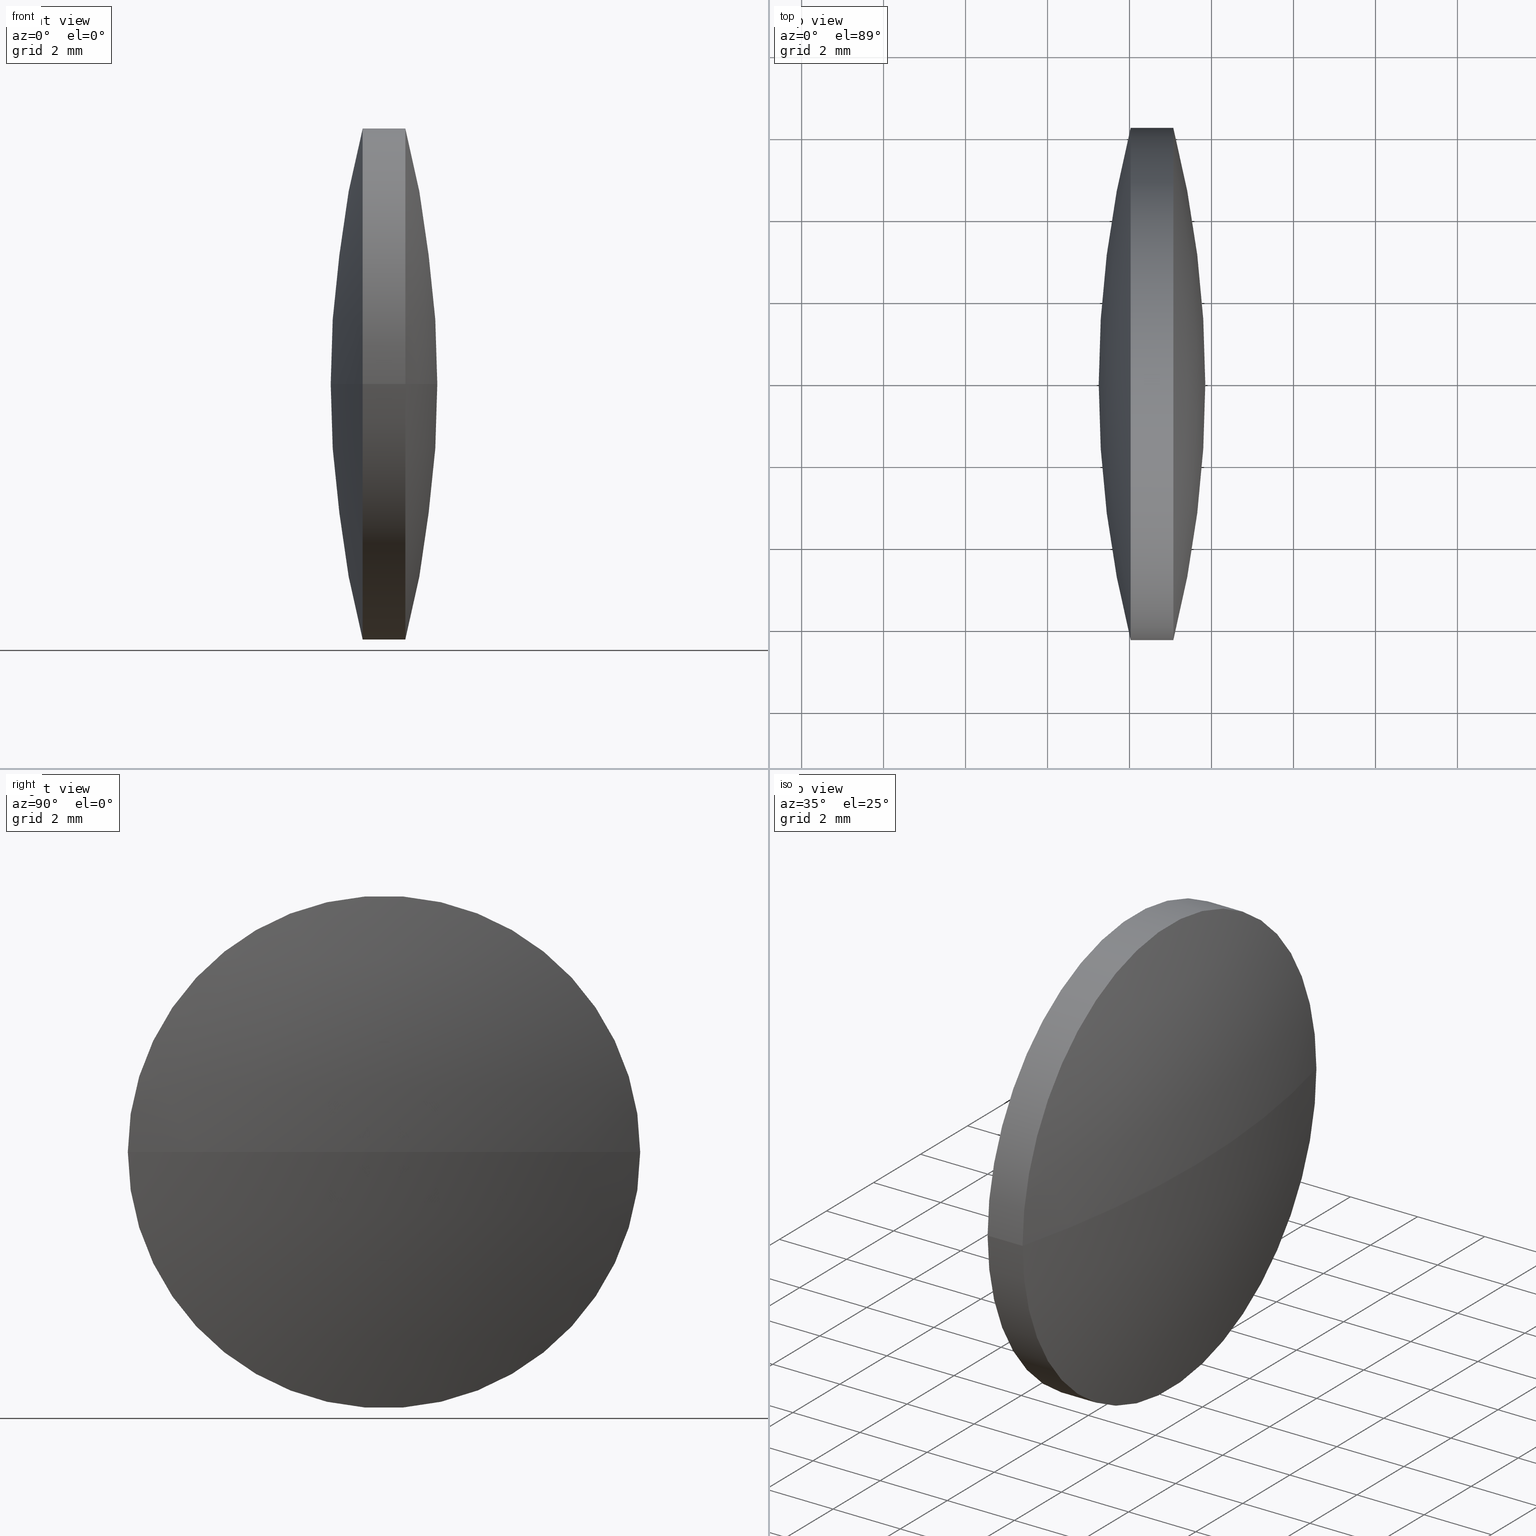
[diagram: canonical four-view strip — front | top / right | iso, engineering-drawing reading convention]
A machine part, canonical four-view strip (front | top / right | iso — engineering-drawing reading convention). The complete STEP part file that produces these views, byte-faithful:
ISO-10303-21;
HEADER;
FILE_DESCRIPTION (( 'STEP AP203' ),
    '1' );
FILE_NAME ('110012.STEP',
    '2019-06-25T01:40:19',
    ( '' ),
    ( '' ),
    'SwSTEP 2.0',
    'SolidWorks 2016',
    '' );
FILE_SCHEMA (( 'CONFIG_CONTROL_DESIGN' ));
ENDSEC;

DATA;
#1 = DIRECTION ( 'NONE',  ( 0.0000000000000000000, -0.0000000000000000000, 1.000000000000000000 ) ) ;
#2 = DIRECTION ( 'NONE',  ( 2.182894663866003600E-015, 1.000000000000000000, 0.0000000000000000000 ) ) ;
#3 = DIRECTION ( 'NONE',  ( 0.0000000000000000000, -0.0000000000000000000, 1.000000000000000000 ) ) ;
#4 = COORDINATED_UNIVERSAL_TIME_OFFSET ( 8, 0, .AHEAD. ) ;
#5 = AXIS2_PLACEMENT_3D ( 'NONE', #32, #196, #224 ) ;
#6 = CARTESIAN_POINT ( 'NONE',  ( 18.41825960543915700, 23.92525247203978000, 0.0000000000000000000 ) ) ;
#7 = EDGE_LOOP ( 'NONE', ( #236, #179, #287 ) ) ;
#8 = CARTESIAN_POINT ( 'NONE',  ( 45.14302203992006200, 23.92525247203976900, 0.0000000000000000000 ) ) ;
#9 = PERSON_AND_ORGANIZATION_ROLE ( 'design_owner' ) ;
#10 = EDGE_CURVE ( 'NONE', #253, #110, #147, .T. ) ;
#11 = DATE_TIME_ROLE ( 'creation_date' ) ;
#12 = ORIENTED_EDGE ( 'NONE', *, *, #111, .T. ) ;
#13 = DATE_AND_TIME ( #207, #85 ) ;
#14 = PERSON_AND_ORGANIZATION_ROLE ( 'creator' ) ;
#15 = LOCAL_TIME ( 9, 40, 19.00000000000000000, #21 ) ;
#16 = EDGE_CURVE ( 'NONE', #110, #198, #109, .T. ) ;
#17 = DATE_AND_TIME ( #203, #23 ) ;
#18 = ORIENTED_EDGE ( 'NONE', *, *, #10, .T. ) ;
#19 = DATE_AND_TIME ( #144, #91 ) ;
#20 = AXIS2_PLACEMENT_3D ( 'NONE', #6, #220, #244 ) ;
#21 = COORDINATED_UNIVERSAL_TIME_OFFSET ( 8, 0, .AHEAD. ) ;
#22 = CC_DESIGN_PERSON_AND_ORGANIZATION_ASSIGNMENT ( #226, #38, ( #30 ) ) ;
#23 = LOCAL_TIME ( 9, 40, 19.00000000000000000, #4 ) ;
#24 = LOCAL_TIME ( 9, 40, 19.00000000000000000, #243 ) ;
#25 = DIRECTION ( 'NONE',  ( 1.000000000000000000, -1.980143587423449700E-015, -0.0000000000000000000 ) ) ;
#26 = APPROVAL ( #131, 'δָ��' ) ;
#27 = SPHERICAL_SURFACE ( 'NONE', #272, 25.43006410256420900 ) ;
#28 = EDGE_CURVE ( 'NONE', #117, #67, #268, .T. ) ;
#29 = DIRECTION ( 'NONE',  ( 0.0000000000000000000, -0.0000000000000000000, 1.000000000000000000 ) ) ;
#30 = PRODUCT_DEFINITION_FORMATION_WITH_SPECIFIED_SOURCE ( '�κ�', '', #174, .NOT_KNOWN. ) ;
#31 = CIRCLE ( 'NONE', #5, 6.249999999999998200 ) ;
#32 = CARTESIAN_POINT ( 'NONE',  ( 42.02832370800324200, 23.92525247203977700, 0.0000000000000000000 ) ) ;
#33 = DIRECTION ( 'NONE',  ( 0.0000000000000000000, 0.0000000000000000000, -1.000000000000000000 ) ) ;
#34 = APPLICATION_PROTOCOL_DEFINITION ( 'international standard', 'config_control_design', 1994, #149 ) ;
#35 = ORIENTED_EDGE ( 'NONE', *, *, #111, .F. ) ;
#36 = PERSON_AND_ORGANIZATION ( #230, #76 ) ;
#37 = APPROVAL_ROLE ( '' ) ;
#38 = PERSON_AND_ORGANIZATION_ROLE ( 'design_supplier' ) ;
#39 = CC_DESIGN_PERSON_AND_ORGANIZATION_ASSIGNMENT ( #240, #99, ( #298 ) ) ;
#40 = CIRCLE ( 'NONE', #115, 25.43006410256420900 ) ;
#41 = LOCAL_TIME ( 9, 40, 19.00000000000000000, #159 ) ;
#42 = APPROVAL_PERSON_ORGANIZATION ( #133, #63, #296 ) ;
#43 = AXIS2_PLACEMENT_3D ( 'NONE', #166, #121, #96 ) ;
#44 = CIRCLE ( 'NONE', #214, 6.249999999999998200 ) ;
#45 = PRODUCT_DEFINITION ( 'δ֪', '', #30, #262 ) ;
#46 = CARTESIAN_POINT ( 'NONE',  ( 42.02832370800324200, 23.92525247203977700, 0.0000000000000000000 ) ) ;
#47 = EDGE_CURVE ( 'NONE', #160, #117, #50, .T. ) ;
#48 = ORIENTED_EDGE ( 'NONE', *, *, #10, .F. ) ;
#49 = DIRECTION ( 'NONE',  ( 2.182894663866003600E-015, 1.000000000000000000, 0.0000000000000000000 ) ) ;
#50 = CIRCLE ( 'NONE', #43, 25.43006410256420900 ) ;
#51 = DIRECTION ( 'NONE',  ( 2.220446049250312300E-015, 1.000000000000000000, 0.0000000000000000000 ) ) ;
#52 = CC_DESIGN_PERSON_AND_ORGANIZATION_ASSIGNMENT ( #36, #263, ( #298 ) ) ;
#53 = APPROVAL_PERSON_ORGANIZATION ( #213, #26, #37 ) ;
#54 = ORIENTED_EDGE ( 'NONE', *, *, #105, .F. ) ;
#55 = CC_DESIGN_APPROVAL ( #26, ( #30 ) ) ;
#56 = AXIS2_PLACEMENT_3D ( 'NONE', #186, #29, #241 ) ;
#57 = PERSON_AND_ORGANIZATION_ROLE ( 'design_owner' ) ;
#58 = PERSON_AND_ORGANIZATION_ROLE ( 'classification_officer' ) ;
#59 = APPROVAL ( #107, 'δָ��' ) ;
#60 = CALENDAR_DATE ( 2019, 25, 6 ) ;
#61 = ADVANCED_BREP_SHAPE_REPRESENTATION ( '110012', ( #279, #171 ), #205 ) ;
#62 = CC_DESIGN_DATE_AND_TIME_ASSIGNMENT ( #156, #270, ( #45 ) ) ;
#63 = APPROVAL ( #104, 'δָ��' ) ;
#64 = FACE_OUTER_BOUND ( 'NONE', #180, .T. ) ;
#65 = COORDINATED_UNIVERSAL_TIME_OFFSET ( 8, 0, .AHEAD. ) ;
#66 = DATE_AND_TIME ( #192, #15 ) ;
#67 = VERTEX_POINT ( 'NONE', #286 ) ;
#68 = ADVANCED_FACE ( 'NONE', ( #132 ), #299, .T. ) ;
#69 = DIRECTION ( 'NONE',  ( 1.000000000000000000, -1.980143587423449700E-015, -0.0000000000000000000 ) ) ;
#70 = AXIS2_PLACEMENT_3D ( 'NONE', #191, #237, #51 ) ;
#71 = VECTOR ( 'NONE', #25, 1000.000000000000000 ) ;
#72 = CALENDAR_DATE ( 2019, 25, 6 ) ;
#73 = PERSON_AND_ORGANIZATION_ROLE ( 'creator' ) ;
#74 = ADVANCED_FACE ( 'NONE', ( #64 ), #188, .T. ) ;
#75 = CARTESIAN_POINT ( 'NONE',  ( 45.14302203992006200, 23.92525247203976900, 0.0000000000000000000 ) ) ;
#76 = ORGANIZATION ( 'δָ��', 'δָ��', '' ) ;
#77 = DIRECTION ( 'NONE',  ( 0.0000000000000000000, 0.0000000000000000000, 1.000000000000000000 ) ) ;
#78 = CC_DESIGN_DATE_AND_TIME_ASSIGNMENT ( #66, #82, ( #216 ) ) ;
#79 = CC_DESIGN_APPROVAL ( #63, ( #305 ) ) ;
#80 = COORDINATED_UNIVERSAL_TIME_OFFSET ( 8, 0, .AHEAD. ) ;
#81 = APPLICATION_CONTEXT ( 'configuration controlled 3d designs of mechanical parts and assemblies' ) ;
#82 = DATE_TIME_ROLE ( 'classification_date' ) ;
#83 = APPROVAL_DATE_TIME ( #233, #26 ) ;
#84 = SECURITY_CLASSIFICATION ( '', '', #125 ) ;
#85 = LOCAL_TIME ( 9, 40, 19.00000000000000000, #210 ) ;
#86 = PERSON_AND_ORGANIZATION ( #230, #76 ) ;
#87 = VECTOR ( 'NONE', #119, 1000.000000000000000 ) ;
#88 = PERSON_AND_ORGANIZATION ( #230, #76 ) ;
#89 = AXIS2_PLACEMENT_3D ( 'NONE', #267, #172, #289 ) ;
#90 = PRODUCT_RELATED_PRODUCT_CATEGORY ( 'detail', '', ( #174 ) ) ;
#91 = LOCAL_TIME ( 9, 40, 19.00000000000000000, #65 ) ;
#92 = CALENDAR_DATE ( 2019, 25, 6 ) ;
#93 = AXIS2_PLACEMENT_3D ( 'NONE', #8, #288, #126 ) ;
#94 = EDGE_LOOP ( 'NONE', ( #12, #18, #54, #239 ) ) ;
#95 = CARTESIAN_POINT ( 'NONE',  ( 41.24832370800325500, 23.92525247203982300, 0.0000000000000000000 ) ) ;
#96 = DIRECTION ( 'NONE',  ( -1.000000000000000000, 0.0000000000000000000, 0.0000000000000000000 ) ) ;
#97 = CC_DESIGN_DATE_AND_TIME_ASSIGNMENT ( #13, #197, ( #84 ) ) ;
#98 = DATE_AND_TIME ( #60, #41 ) ;
#99 = PERSON_AND_ORGANIZATION_ROLE ( 'creator' ) ;
#100 = DIRECTION ( 'NONE',  ( 0.0000000000000000000, -1.000000000000000000, 1.224646799147353200E-016 ) ) ;
#101 = CARTESIAN_POINT ( 'NONE',  ( 42.02832370800322800, 17.67525247203977700, 7.654042494670959600E-016 ) ) ;
#102 = ORIENTED_EDGE ( 'NONE', *, *, #284, .F. ) ;
#103 = APPROVAL_DATE_TIME ( #255, #59 ) ;
#104 = APPROVAL_STATUS ( 'not_yet_approved' ) ;
#105 = EDGE_CURVE ( 'NONE', #67, #110, #183, .T. ) ;
#106 = PERSON_AND_ORGANIZATION_ROLE ( 'creator' ) ;
#107 = APPROVAL_STATUS ( 'not_yet_approved' ) ;
#108 = CC_DESIGN_PERSON_AND_ORGANIZATION_ASSIGNMENT ( #283, #106, ( #45 ) ) ;
#109 = CIRCLE ( 'NONE', #261, 25.43006410256409900 ) ;
#110 = VERTEX_POINT ( 'NONE', #123 ) ;
#111 = EDGE_CURVE ( 'NONE', #117, #253, #44, .T. ) ;
#112 = DESIGN_CONTEXT ( 'detailed design', #149, 'design' ) ;
#113 = ORIENTED_EDGE ( 'NONE', *, *, #105, .T. ) ;
#114 = LOCAL_TIME ( 9, 40, 19.00000000000000000, #124 ) ;
#115 = AXIS2_PLACEMENT_3D ( 'NONE', #265, #145, #100 ) ;
#116 = UNCERTAINTY_MEASURE_WITH_UNIT (LENGTH_MEASURE( 1.000000000000000100E-005 ), #167, 'distance_accuracy_value', 'NONE');
#117 = VERTEX_POINT ( 'NONE', #164 ) ;
#118 = DIRECTION ( 'NONE',  ( 2.220446049250313900E-015, 1.000000000000000000, 0.0000000000000000000 ) ) ;
#119 = DIRECTION ( 'NONE',  ( 1.000000000000000000, -1.980143587423449700E-015, -0.0000000000000000000 ) ) ;
#120 = PERSON_AND_ORGANIZATION ( #230, #76 ) ;
#121 = DIRECTION ( 'NONE',  ( 0.0000000000000000000, 0.0000000000000000000, -1.000000000000000000 ) ) ;
#122 = CC_DESIGN_PERSON_AND_ORGANIZATION_ASSIGNMENT ( #269, #9, ( #157 ) ) ;
#123 = CARTESIAN_POINT ( 'NONE',  ( 43.06832370800323400, 17.67525247203972000, 7.654042494670971400E-016 ) ) ;
#124 = COORDINATED_UNIVERSAL_TIME_OFFSET ( 8, 0, .AHEAD. ) ;
#125 = SECURITY_CLASSIFICATION_LEVEL ( 'unclassified' ) ;
#126 = DIRECTION ( 'NONE',  ( 2.220446049250313900E-015, 1.000000000000000000, 0.0000000000000000000 ) ) ;
#127 = APPLICATION_CONTEXT ( 'configuration controlled 3d designs of mechanical parts and assemblies' ) ;
#128 = AXIS2_PLACEMENT_3D ( 'NONE', #211, #3, #2 ) ;
#129 = APPLICATION_PROTOCOL_DEFINITION ( 'international standard', 'config_control_design', 1994, #130 ) ;
#130 = APPLICATION_CONTEXT ( 'configuration controlled 3d designs of mechanical parts and assemblies' ) ;
#131 = APPROVAL_STATUS ( 'not_yet_approved' ) ;
#132 = FACE_OUTER_BOUND ( 'NONE', #257, .T. ) ;
#133 = PERSON_AND_ORGANIZATION ( #230, #76 ) ;
#134 = SPHERICAL_SURFACE ( 'NONE', #20, 25.43006410256409900 ) ;
#135 = EDGE_LOOP ( 'NONE', ( #249, #212, #35 ) ) ;
#136 = CC_DESIGN_DATE_AND_TIME_ASSIGNMENT ( #153, #11, ( #305 ) ) ;
#137 = APPROVAL_PERSON_ORGANIZATION ( #259, #178, #175 ) ;
#138 = DATE_AND_TIME ( #92, #24 ) ;
#139 = PERSON_AND_ORGANIZATION ( #230, #76 ) ;
#140 = CC_DESIGN_PERSON_AND_ORGANIZATION_ASSIGNMENT ( #273, #143, ( #84 ) ) ;
#141 = ORIENTED_EDGE ( 'NONE', *, *, #158, .T. ) ;
#142 = ADVANCED_FACE ( 'NONE', ( #254 ), #27, .T. ) ;
#143 = PERSON_AND_ORGANIZATION_ROLE ( 'classification_officer' ) ;
#144 = CALENDAR_DATE ( 2019, 25, 6 ) ;
#145 = DIRECTION ( 'NONE',  ( 2.424976506190284800E-031, 1.224646799147353200E-016, 1.000000000000000000 ) ) ;
#146 = CARTESIAN_POINT ( 'NONE',  ( 43.84832370800325700, 23.92525247203973000, 0.0000000000000000000 ) ) ;
#147 = LINE ( 'NONE', #161, #87 ) ;
#148 = CALENDAR_DATE ( 2019, 25, 6 ) ;
#149 = APPLICATION_CONTEXT ( 'configuration controlled 3d designs of mechanical parts and assemblies' ) ;
#150 = APPROVAL ( #193, 'δָ��' ) ;
#151 = APPLICATION_PROTOCOL_DEFINITION ( 'international standard', 'config_control_design', 1994, #81 ) ;
#152 = CIRCLE ( 'NONE', #89, 6.250000000000001800 ) ;
#153 = DATE_AND_TIME ( #148, #165 ) ;
#154 = AXIS2_PLACEMENT_3D ( 'NONE', #219, #246, #266 ) ;
#155 = CLOSED_SHELL ( 'NONE', ( #142, #215, #68, #184, #285, #74 ) ) ;
#156 = DATE_AND_TIME ( #301, #250 ) ;
#157 = PRODUCT ( '110012', '110012', '', ( #292 ) ) ;
#158 = EDGE_CURVE ( 'NONE', #253, #117, #31, .T. ) ;
#159 = COORDINATED_UNIVERSAL_TIME_OFFSET ( 8, 0, .AHEAD. ) ;
#160 = VERTEX_POINT ( 'NONE', #95 ) ;
#161 = CARTESIAN_POINT ( 'NONE',  ( 45.14302203992004800, 17.67525247203976900, 7.654042494670957600E-016 ) ) ;
#162 = LOCAL_TIME ( 9, 40, 19.00000000000000000, #232 ) ;
#163 = CC_DESIGN_APPROVAL ( #150, ( #298 ) ) ;
#164 = CARTESIAN_POINT ( 'NONE',  ( 42.02832370800324900, 30.17525247203977700, 0.0000000000000000000 ) ) ;
#165 = LOCAL_TIME ( 9, 40, 19.00000000000000000, #80 ) ;
#166 = CARTESIAN_POINT ( 'NONE',  ( 66.67838781056747200, 23.92525247203976900, 0.0000000000000000000 ) ) ;
#167 =( LENGTH_UNIT ( ) NAMED_UNIT ( * ) SI_UNIT ( .MILLI., .METRE. ) );
#168 = DIRECTION ( 'NONE',  ( 1.000000000000000000, -1.980143587423449700E-015, -0.0000000000000000000 ) ) ;
#169 = CARTESIAN_POINT ( 'NONE',  ( 18.41825960543915700, 23.92525247203978000, 0.0000000000000000000 ) ) ;
#170 = ORIENTED_EDGE ( 'NONE', *, *, #276, .F. ) ;
#171 = AXIS2_PLACEMENT_3D ( 'NONE', #194, #77, #295 ) ;
#172 = DIRECTION ( 'NONE',  ( 1.000000000000000000, -1.980143587423449700E-015, -0.0000000000000000000 ) ) ;
#173 =( NAMED_UNIT ( * ) PLANE_ANGLE_UNIT ( ) SI_UNIT ( $, .RADIAN. ) );
#174 = PRODUCT ( '110012', '110012', '', ( #225 ) ) ;
#175 = APPROVAL_ROLE ( '' ) ;
#176 = ORIENTED_EDGE ( 'NONE', *, *, #158, .F. ) ;
#177 = PERSON_AND_ORGANIZATION ( #230, #76 ) ;
#178 = APPROVAL ( #200, 'δָ��' ) ;
#179 = ORIENTED_EDGE ( 'NONE', *, *, #276, .T. ) ;
#180 = EDGE_LOOP ( 'NONE', ( #221, #231, #176 ) ) ;
#181 = APPROVAL_PERSON_ORGANIZATION ( #177, #59, #297 ) ;
#182 = PERSON_AND_ORGANIZATION ( #230, #76 ) ;
#183 = CIRCLE ( 'NONE', #70, 6.250000000000001800 ) ;
#184 = ADVANCED_FACE ( 'NONE', ( #202 ), #134, .T. ) ;
#185 = CC_DESIGN_APPROVAL ( #59, ( #45 ) ) ;
#186 = CARTESIAN_POINT ( 'NONE',  ( 18.41825960543915700, 23.92525247203978000, 0.0000000000000000000 ) ) ;
#187 = CC_DESIGN_SECURITY_CLASSIFICATION ( #84, ( #298 ) ) ;
#188 = SPHERICAL_SURFACE ( 'NONE', #128, 25.43006410256420900 ) ;
#189 = CARTESIAN_POINT ( 'NONE',  ( 18.41825960543915700, 23.92525247203978000, 0.0000000000000000000 ) ) ;
#190 = APPROVAL_PERSON_ORGANIZATION ( #88, #150, #242 ) ;
#191 = CARTESIAN_POINT ( 'NONE',  ( 43.06832370800324100, 23.92525247203977300, 0.0000000000000000000 ) ) ;
#192 = CALENDAR_DATE ( 2019, 25, 6 ) ;
#193 = APPROVAL_STATUS ( 'not_yet_approved' ) ;
#194 = CARTESIAN_POINT ( 'NONE',  ( 0.0000000000000000000, 0.0000000000000000000, 0.0000000000000000000 ) ) ;
#195 =( NAMED_UNIT ( * ) SI_UNIT ( $, .STERADIAN. ) SOLID_ANGLE_UNIT ( ) );
#196 = DIRECTION ( 'NONE',  ( 1.000000000000000000, -1.980143587423449700E-015, -0.0000000000000000000 ) ) ;
#197 = DATE_TIME_ROLE ( 'classification_date' ) ;
#198 = VERTEX_POINT ( 'NONE', #146 ) ;
#199 = EDGE_CURVE ( 'NONE', #160, #253, #40, .T. ) ;
#200 = APPROVAL_STATUS ( 'not_yet_approved' ) ;
#201 = APPROVAL_ROLE ( '' ) ;
#202 = FACE_OUTER_BOUND ( 'NONE', #7, .T. ) ;
#203 = CALENDAR_DATE ( 2019, 25, 6 ) ;
#204 = CC_DESIGN_APPROVAL ( #290, ( #216 ) ) ;
#205 =( GEOMETRIC_REPRESENTATION_CONTEXT ( 3 ) GLOBAL_UNCERTAINTY_ASSIGNED_CONTEXT ( ( #116 ) ) GLOBAL_UNIT_ASSIGNED_CONTEXT ( ( #167, #173, #195 ) ) REPRESENTATION_CONTEXT ( 'NONE', 'WORKASPACE' ) );
#206 = EDGE_LOOP ( 'NONE', ( #48, #141, #304, #170 ) ) ;
#207 = CALENDAR_DATE ( 2019, 25, 6 ) ;
#208 = CC_DESIGN_APPROVAL ( #178, ( #84 ) ) ;
#209 = CYLINDRICAL_SURFACE ( 'NONE', #291, 6.249999999999998200 ) ;
#210 = COORDINATED_UNIVERSAL_TIME_OFFSET ( 8, 0, .AHEAD. ) ;
#211 = CARTESIAN_POINT ( 'NONE',  ( 66.67838781056747200, 23.92525247203976900, 0.0000000000000000000 ) ) ;
#212 = ORIENTED_EDGE ( 'NONE', *, *, #199, .T. ) ;
#213 = PERSON_AND_ORGANIZATION ( #230, #76 ) ;
#214 = AXIS2_PLACEMENT_3D ( 'NONE', #46, #69, #118 ) ;
#215 = ADVANCED_FACE ( 'NONE', ( #280 ), #217, .T. ) ;
#216 = SECURITY_CLASSIFICATION ( '', '', #227 ) ;
#217 = CYLINDRICAL_SURFACE ( 'NONE', #93, 6.249999999999998200 ) ;
#218 = DIRECTION ( 'NONE',  ( 2.220446049250313900E-015, 1.000000000000000000, 0.0000000000000000000 ) ) ;
#219 = CARTESIAN_POINT ( 'NONE',  ( 0.0000000000000000000, 0.0000000000000000000, 0.0000000000000000000 ) ) ;
#220 = DIRECTION ( 'NONE',  ( 0.0000000000000000000, -0.0000000000000000000, 1.000000000000000000 ) ) ;
#221 = ORIENTED_EDGE ( 'NONE', *, *, #199, .F. ) ;
#222 = PRODUCT_RELATED_PRODUCT_CATEGORY ( 'detail', '', ( #157 ) ) ;
#223 = COORDINATED_UNIVERSAL_TIME_OFFSET ( 8, 0, .AHEAD. ) ;
#224 = DIRECTION ( 'NONE',  ( 2.220446049250313900E-015, 1.000000000000000000, 0.0000000000000000000 ) ) ;
#225 = MECHANICAL_CONTEXT ( 'NONE', #127, 'mechanical' ) ;
#226 = PERSON_AND_ORGANIZATION ( #230, #76 ) ;
#227 = SECURITY_CLASSIFICATION_LEVEL ( 'unclassified' ) ;
#228 = FACE_OUTER_BOUND ( 'NONE', #206, .T. ) ;
#229 = CC_DESIGN_PERSON_AND_ORGANIZATION_ASSIGNMENT ( #139, #57, ( #174 ) ) ;
#230 = PERSON ( 'δָ��', 'δָ��', 'δָ��', ('δָ��'), ('δָ��'), ('δָ��') ) ;
#231 = ORIENTED_EDGE ( 'NONE', *, *, #47, .T. ) ;
#232 = COORDINATED_UNIVERSAL_TIME_OFFSET ( 8, 0, .AHEAD. ) ;
#233 = DATE_AND_TIME ( #300, #114 ) ;
#234 = CC_DESIGN_PERSON_AND_ORGANIZATION_ASSIGNMENT ( #86, #58, ( #216 ) ) ;
#235 = PRODUCT_DEFINITION_SHAPE ( 'NONE', 'NONE',  #305 ) ;
#236 = ORIENTED_EDGE ( 'NONE', *, *, #16, .F. ) ;
#237 = DIRECTION ( 'NONE',  ( 1.000000000000000000, -1.980143587423449700E-015, -0.0000000000000000000 ) ) ;
#238 = DIRECTION ( 'NONE',  ( 2.424976506190284800E-031, 1.224646799147353200E-016, 1.000000000000000000 ) ) ;
#239 = ORIENTED_EDGE ( 'NONE', *, *, #28, .F. ) ;
#240 = PERSON_AND_ORGANIZATION ( #230, #76 ) ;
#241 = DIRECTION ( 'NONE',  ( 2.046463747374387600E-015, 1.000000000000000000, 0.0000000000000000000 ) ) ;
#242 = APPROVAL_ROLE ( '' ) ;
#243 = COORDINATED_UNIVERSAL_TIME_OFFSET ( 8, 0, .AHEAD. ) ;
#244 = DIRECTION ( 'NONE',  ( 2.046463747374387600E-015, 1.000000000000000000, 0.0000000000000000000 ) ) ;
#245 = CC_DESIGN_SECURITY_CLASSIFICATION ( #216, ( #30 ) ) ;
#246 = DIRECTION ( 'NONE',  ( 0.0000000000000000000, 0.0000000000000000000, 1.000000000000000000 ) ) ;
#247 = DIRECTION ( 'NONE',  ( -1.000000000000000000, 0.0000000000000000000, 0.0000000000000000000 ) ) ;
#248 = APPLICATION_PROTOCOL_DEFINITION ( 'international standard', 'config_control_design', 1994, #127 ) ;
#249 = ORIENTED_EDGE ( 'NONE', *, *, #47, .F. ) ;
#250 = LOCAL_TIME ( 9, 40, 19.00000000000000000, #223 ) ;
#251 = APPROVAL_STATUS ( 'not_yet_approved' ) ;
#252 = APPROVAL_DATE_TIME ( #138, #290 ) ;
#253 = VERTEX_POINT ( 'NONE', #101 ) ;
#254 = FACE_OUTER_BOUND ( 'NONE', #135, .T. ) ;
#255 = DATE_AND_TIME ( #72, #162 ) ;
#256 = SHAPE_DEFINITION_REPRESENTATION ( #274, #61 ) ;
#257 = EDGE_LOOP ( 'NONE', ( #113, #293, #102 ) ) ;
#258 = CARTESIAN_POINT ( 'NONE',  ( 45.14302203992007600, 30.17525247203976900, 0.0000000000000000000 ) ) ;
#259 = PERSON_AND_ORGANIZATION ( #230, #76 ) ;
#260 = DIRECTION ( 'NONE',  ( 0.0000000000000000000, -1.000000000000000000, 1.224646799147353200E-016 ) ) ;
#261 = AXIS2_PLACEMENT_3D ( 'NONE', #189, #238, #260 ) ;
#262 = DESIGN_CONTEXT ( 'detailed design', #81, 'design' ) ;
#263 = PERSON_AND_ORGANIZATION_ROLE ( 'design_supplier' ) ;
#264 = PERSON_AND_ORGANIZATION ( #230, #76 ) ;
#265 = CARTESIAN_POINT ( 'NONE',  ( 66.67838781056747200, 23.92525247203976900, 0.0000000000000000000 ) ) ;
#266 = DIRECTION ( 'NONE',  ( 1.000000000000000000, 0.0000000000000000000, 0.0000000000000000000 ) ) ;
#267 = CARTESIAN_POINT ( 'NONE',  ( 43.06832370800324100, 23.92525247203977300, 0.0000000000000000000 ) ) ;
#268 = LINE ( 'NONE', #258, #71 ) ;
#269 = PERSON_AND_ORGANIZATION ( #230, #76 ) ;
#270 = DATE_TIME_ROLE ( 'creation_date' ) ;
#271 = CIRCLE ( 'NONE', #303, 25.43006410256409900 ) ;
#272 = AXIS2_PLACEMENT_3D ( 'NONE', #282, #1, #49 ) ;
#273 = PERSON_AND_ORGANIZATION ( #230, #76 ) ;
#274 = PRODUCT_DEFINITION_SHAPE ( 'NONE', 'NONE',  #45 ) ;
#275 = CC_DESIGN_PERSON_AND_ORGANIZATION_ASSIGNMENT ( #120, #14, ( #30 ) ) ;
#276 = EDGE_CURVE ( 'NONE', #110, #67, #152, .T. ) ;
#277 = APPROVAL_DATE_TIME ( #19, #150 ) ;
#278 = CC_DESIGN_PERSON_AND_ORGANIZATION_ASSIGNMENT ( #264, #73, ( #305 ) ) ;
#279 = MANIFOLD_SOLID_BREP ( '��ת1', #155 ) ;
#280 = FACE_OUTER_BOUND ( 'NONE', #94, .T. ) ;
#281 = APPROVAL_DATE_TIME ( #98, #63 ) ;
#282 = CARTESIAN_POINT ( 'NONE',  ( 66.67838781056747200, 23.92525247203976900, 0.0000000000000000000 ) ) ;
#283 = PERSON_AND_ORGANIZATION ( #230, #76 ) ;
#284 = EDGE_CURVE ( 'NONE', #67, #198, #271, .T. ) ;
#285 = ADVANCED_FACE ( 'NONE', ( #228 ), #209, .T. ) ;
#286 = CARTESIAN_POINT ( 'NONE',  ( 43.06832370800325500, 30.17525247203978400, 0.0000000000000000000 ) ) ;
#287 = ORIENTED_EDGE ( 'NONE', *, *, #284, .T. ) ;
#288 = DIRECTION ( 'NONE',  ( 1.000000000000000000, -1.980143587423449700E-015, -0.0000000000000000000 ) ) ;
#289 = DIRECTION ( 'NONE',  ( 2.220446049250312300E-015, 1.000000000000000000, 0.0000000000000000000 ) ) ;
#290 = APPROVAL ( #251, 'δָ��' ) ;
#291 = AXIS2_PLACEMENT_3D ( 'NONE', #75, #168, #218 ) ;
#292 = MECHANICAL_CONTEXT ( 'NONE', #130, 'mechanical' ) ;
#293 = ORIENTED_EDGE ( 'NONE', *, *, #16, .T. ) ;
#294 = APPROVAL_DATE_TIME ( #17, #178 ) ;
#295 = DIRECTION ( 'NONE',  ( 1.000000000000000000, 0.0000000000000000000, 0.0000000000000000000 ) ) ;
#296 = APPROVAL_ROLE ( '' ) ;
#297 = APPROVAL_ROLE ( '' ) ;
#298 = PRODUCT_DEFINITION_FORMATION_WITH_SPECIFIED_SOURCE ( '�κ�', '', #157, .NOT_KNOWN. ) ;
#299 = SPHERICAL_SURFACE ( 'NONE', #56, 25.43006410256409900 ) ;
#300 = CALENDAR_DATE ( 2019, 25, 6 ) ;
#301 = CALENDAR_DATE ( 2019, 25, 6 ) ;
#302 = APPROVAL_PERSON_ORGANIZATION ( #182, #290, #201 ) ;
#303 = AXIS2_PLACEMENT_3D ( 'NONE', #169, #33, #247 ) ;
#304 = ORIENTED_EDGE ( 'NONE', *, *, #28, .T. ) ;
#305 = PRODUCT_DEFINITION ( 'δ֪', '', #298, #112 ) ;
ENDSEC;
END-ISO-10303-21;
